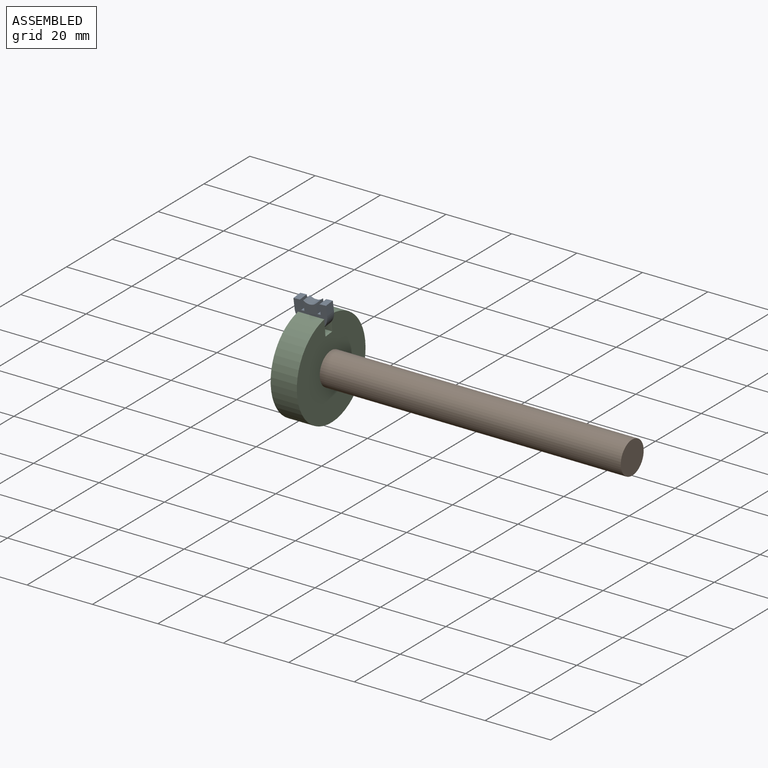
[diagram: assembled view]
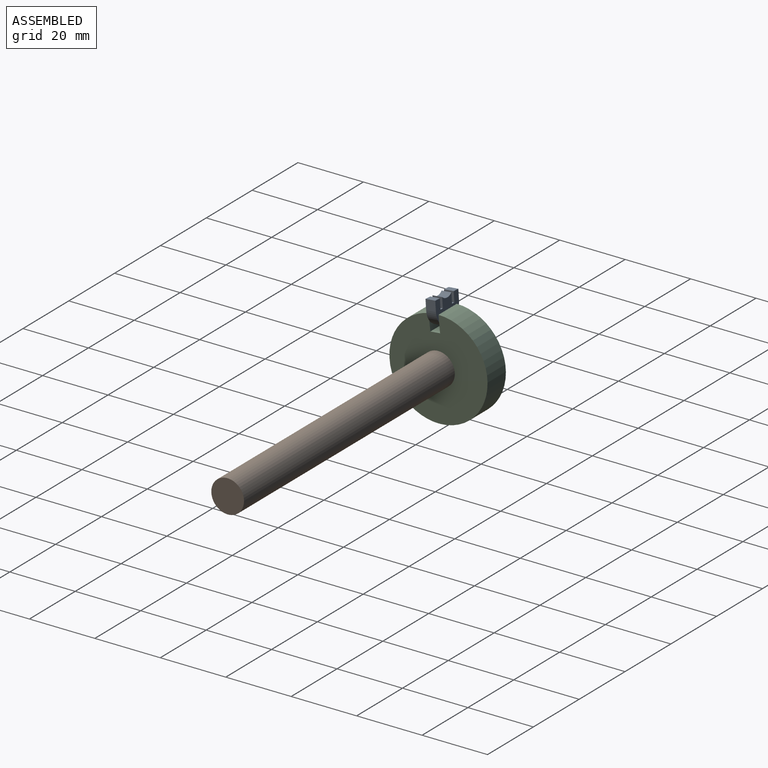
[diagram: assembled view, second angle]
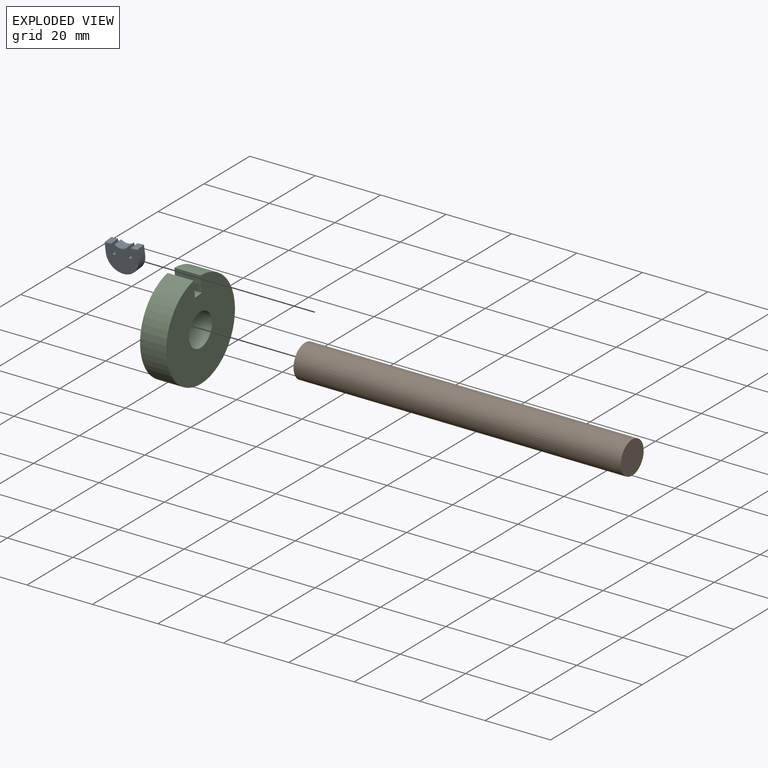
[diagram: exploded view]
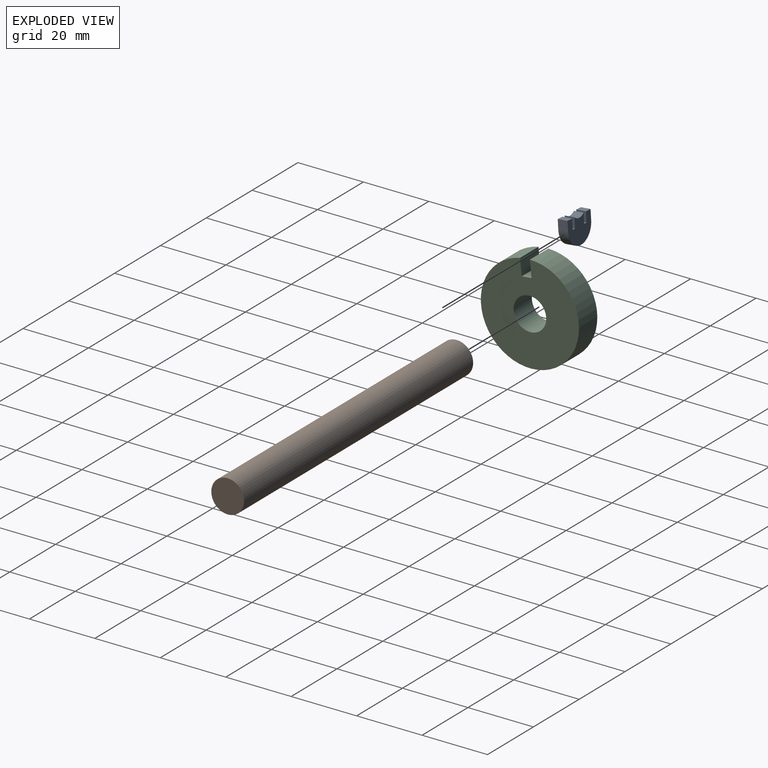
[diagram: exploded view, second angle]
ASSEMBLY  parts=3 mates=2
PART A: 14 faces, bbox 10x3x8 mm
  f0: plane 3x2mm, normal (0,0,1), area 6mm2, adj f1,f11,f12,f13
  f1: plane 3x3mm, normal (-1,0,0), area 9mm2, adj f0,f2,f12,f13
  f2: cylinder r=5mm len=10mm, axis (0,1,0), area 47.1mm2, adj f1,f3,f12,f13
  f3: plane 3x3mm, normal (1,0,0), area 9mm2, adj f2,f4,f12,f13
  f4: plane 3x2mm, normal (0,0,1), area 6mm2, adj f3,f5,f12,f13
  f5: plane 3x3mm, normal (-1,0,0), area 9mm2, adj f4,f6,f12,f13
  f6: plane 3x1mm, normal (0,0,1), area 3mm2, adj f5,f7,f12,f13
  f7: plane 3x3mm, normal (1,0,0), area 9mm2, adj f6,f8,f12,f13
  f8: cylinder r=3mm len=4mm, axis (0,1,0), area 13.1mm2, adj f7,f9,f12,f13
  f9: plane 3x3mm, normal (-1,0,0), area 9mm2, adj f8,f10,f12,f13
  f10: plane 3x1mm, normal (0,0,1), area 3mm2, adj f9,f11,f12,f13
  f11: plane 3x3mm, normal (1,0,0), area 9mm2, adj f0,f10,f12,f13
  f12: plane 10x8mm, normal (0,-1,0), area 61.2mm2, adj f0,f1,f2,f3,f4,f5,f6,f7
  f13: plane 10x8mm, normal (0,1,0), area 61.2mm2, adj f0,f1,f2,f3,f4,f5,f6,f7
PART B: 3 faces, bbox 100x10x10 mm
  f0: cylinder r=5mm len=100mm, axis (-1,0,0), area 3141.6mm2, adj f1,f2
  f1: plane 10x10mm, normal (1,0,0), area 78.5mm2, adj f0
  f2: plane 10x10mm, normal (-1,0,0), area 78.5mm2, adj f0
PART C: 7 faces, bbox 8x30x29.9 mm
  f0: plane 8x3mm, normal (0,0,1), area 24mm2, adj f1,f4,f5,f6
  f1: plane 8x5mm, normal (0,1,0), area 40mm2, adj f0,f2,f5,f6
  f2: cylinder r=15mm len=30mm, axis (-1,0,0), area 729.9mm2, adj f1,f4,f5,f6
  f3: cylinder r=5mm len=10mm, axis (-1,0,0), area 251.3mm2, adj f5,f6
  f4: plane 8x5mm, normal (0,-1,0), area 40mm2, adj f0,f2,f5,f6
  f5: plane 30x29.93mm, normal (1,0,0), area 613.2mm2, adj f0,f1,f2,f3,f4
  f6: plane 30x29.93mm, normal (-1,0,0), area 613.2mm2, adj f0,f1,f2,f3,f4
PLACE A rot(axis=(0.89,-0.46,-0.02),6.5deg) t=(-54.76,-120.61,-0.69)mm
PLACE B rot(axis=(1,0,0),22.8deg) t=(-58.72,-60.57,-51.25)mm
PLACE C rot(axis=(1,0,0),5.8deg) t=(-58.72,-120.51,-16.55)mm
MATE revolute C.f4 <-> A.f13  axis (0,-0.99,-0.1) through (-54.72,-120.52,-1.55)mm
MATE revolute B.f0 <-> C.f2  axis (-1,0,0) through (-58.72,-120.51,-16.55)mm
